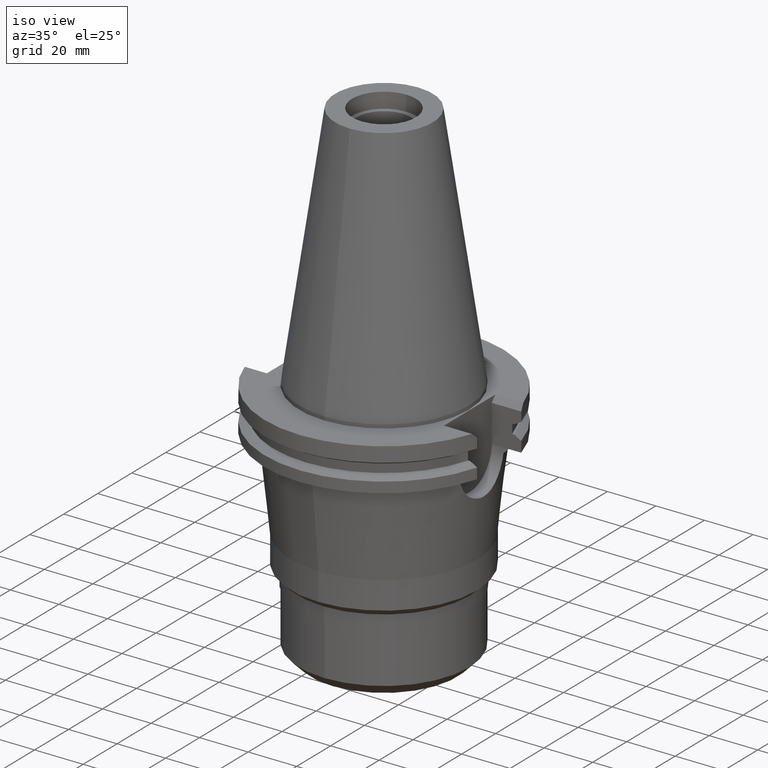
[diagram: clean part render]
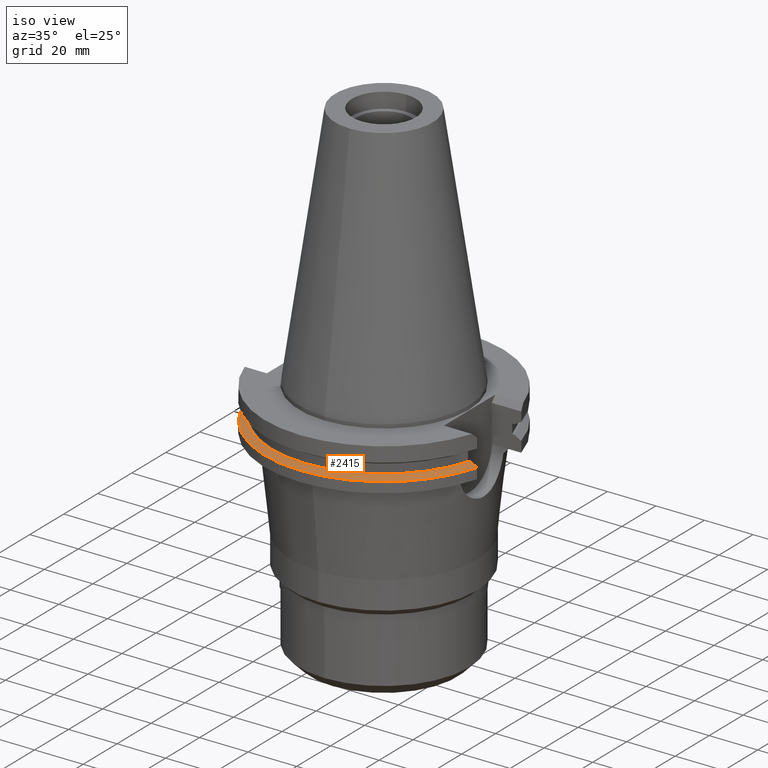
[diagram: same view with one face highlighted and labeled with its STEP entity id]
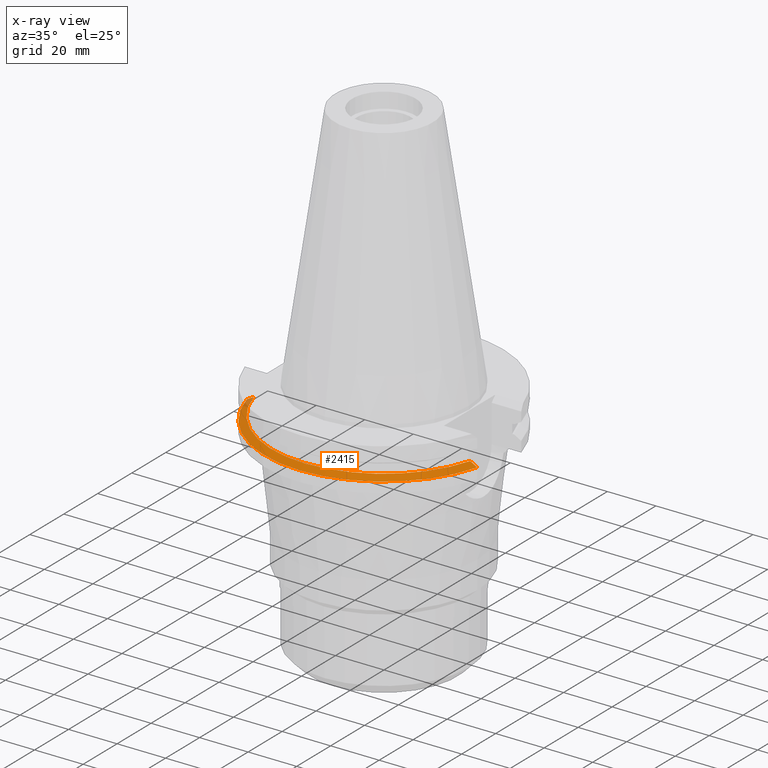
[diagram: x-ray of the same camera — body ghosted, the highlighted face saturated]
A machine part, iso view. The second image highlights one B-rep face of the part: STEP entity #2415.
The next image is the same camera in x-ray: the body ghosted, the highlighted face saturated — about 2% of this face is hidden behind the body in this view.
In plain terms, the highlighted conical surface has half-angle 60 deg.
Its self-contained STEP definition (entity closure, byte-faithful):
#891=CARTESIAN_POINT('',(4.458657636813E1,-1.2955E1,-1.30475E1));
#892=CARTESIAN_POINT('',(4.490806163993E1,-1.2955E1,-1.322573823302E1));
#893=CARTESIAN_POINT('',(4.555077636711E1,-1.2955E1,-1.358239409644E1));
#894=CARTESIAN_POINT('',(4.651414584908E1,-1.2955E1,-1.411780078680E1));
#895=CARTESIAN_POINT('',(4.715593427837E1,-1.2955E1,-1.447499824730E1));
#896=CARTESIAN_POINT('',(4.747671146204E1,-1.2955E1,-1.465366676908E1));
#901=CARTESIAN_POINT('',(0.E0,1.055026073065E-14,-1.465366676908E1));
#902=DIRECTION('',(0.E0,0.E0,-1.E0));
#903=DIRECTION('',(9.647287063661E-1,-2.632461264923E-1,0.E0));
#904=AXIS2_PLACEMENT_3D('',#901,#902,#903);
#909=CARTESIAN_POINT('',(0.E0,1.055026073065E-14,-1.465366676908E1));
#910=DIRECTION('',(0.E0,0.E0,-1.E0));
#911=DIRECTION('',(0.E0,-1.E0,0.E0));
#912=AXIS2_PLACEMENT_3D('',#909,#910,#911);
#917=CARTESIAN_POINT('',(-4.747671146204E1,-1.2955E1,-1.465366676908E1));
#918=CARTESIAN_POINT('',(-4.715593427836E1,-1.2955E1,-1.447499824729E1));
#919=CARTESIAN_POINT('',(-4.651414584905E1,-1.2955E1,-1.411780078678E1));
#920=CARTESIAN_POINT('',(-4.555077636708E1,-1.2955E1,-1.358239409642E1));
#921=CARTESIAN_POINT('',(-4.490806163991E1,-1.2955E1,-1.322573823301E1));
#922=CARTESIAN_POINT('',(-4.458657636813E1,-1.2955E1,-1.30475E1));
#934=CARTESIAN_POINT('',(0.E0,1.055026073065E-14,-1.30475E1));
#935=DIRECTION('',(0.E0,0.E0,-1.E0));
#936=DIRECTION('',(9.602855947900E-1,-2.790189535476E-1,0.E0));
#937=AXIS2_PLACEMENT_3D('',#934,#935,#936);
#942=CARTESIAN_POINT('',(0.E0,1.055026073065E-14,-1.30475E1));
#943=DIRECTION('',(0.E0,0.E0,-1.E0));
#944=DIRECTION('',(0.E0,-1.E0,0.E0));
#945=AXIS2_PLACEMENT_3D('',#942,#943,#944);
#1653=CARTESIAN_POINT('',(4.747671146204E1,-1.2955E1,-1.465366676908E1));
#1654=VERTEX_POINT('',#1653);
#1655=VERTEX_POINT('',#891);
#1690=CARTESIAN_POINT('',(-4.458657636813E1,-1.2955E1,-1.30475E1));
#1691=VERTEX_POINT('',#1690);
#1692=VERTEX_POINT('',#917);
#1765=CARTESIAN_POINT('',(3.687402563152E-14,-4.643053755053E1,-1.30475E1));
#1766=VERTEX_POINT('',#1765);
#1773=CARTESIAN_POINT('',(0.E0,-4.92125E1,-1.465366676908E1));
#1774=VERTEX_POINT('',#1773);
#2400=CARTESIAN_POINT('',(0.E0,1.055026073065E-14,-1.385058338454E1));
#2401=DIRECTION('',(0.E0,0.E0,-1.E0));
#2402=DIRECTION('',(0.E0,-1.E0,0.E0));
#2403=AXIS2_PLACEMENT_3D('',#2400,#2401,#2402);
#2404=CONICAL_SURFACE('',#2403,4.782151877527E1,6.E1);
#2405=ORIENTED_EDGE('',*,*,#2305,.T.);
#2406=ORIENTED_EDGE('',*,*,#2395,.T.);
#2407=ORIENTED_EDGE('',*,*,#2393,.T.);
#2408=ORIENTED_EDGE('',*,*,#2361,.T.);
#2410=ORIENTED_EDGE('',*,*,#2409,.F.);
#2412=ORIENTED_EDGE('',*,*,#2411,.F.);
#2413=EDGE_LOOP('',(#2405,#2406,#2407,#2408,#2410,#2412));
#2414=FACE_OUTER_BOUND('',#2413,.F.);
#897=B_SPLINE_CURVE_WITH_KNOTS('',3,(#891,#892,#893,#894,#895,#896),
.UNSPECIFIED.,.F.,.F.,(4,1,1,4),(0.E0,3.333333333333E-1,6.666666666667E-1,1.E0),
.UNSPECIFIED.);
#905=CIRCLE('',#904,4.92125E1);
#913=CIRCLE('',#912,4.92125E1);
#923=B_SPLINE_CURVE_WITH_KNOTS('',3,(#917,#918,#919,#920,#921,#922),
.UNSPECIFIED.,.F.,.F.,(4,1,1,4),(0.E0,3.333333333333E-1,6.666666666667E-1,1.E0),
.UNSPECIFIED.);
#938=CIRCLE('',#937,4.643053755053E1);
#946=CIRCLE('',#945,4.643053755053E1);
#2305=EDGE_CURVE('',#1655,#1654,#897,.T.);
#2361=EDGE_CURVE('',#1692,#1691,#923,.T.);
#2393=EDGE_CURVE('',#1774,#1692,#913,.T.);
#2395=EDGE_CURVE('',#1654,#1774,#905,.T.);
#2409=EDGE_CURVE('',#1766,#1691,#946,.T.);
#2411=EDGE_CURVE('',#1655,#1766,#938,.T.);
#2415=ADVANCED_FACE('',(#2414),#2404,.T.);